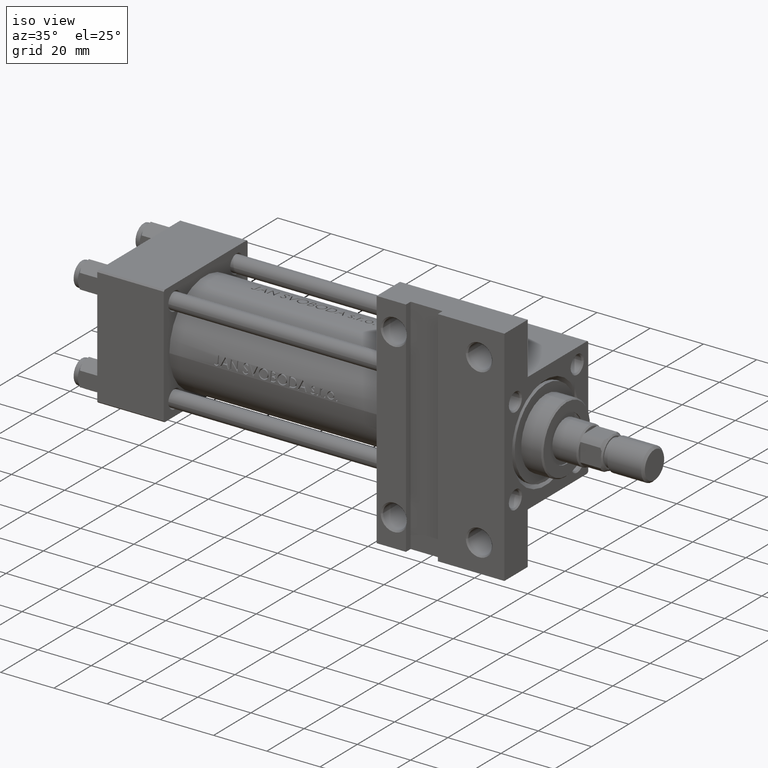
[diagram: clean part render]
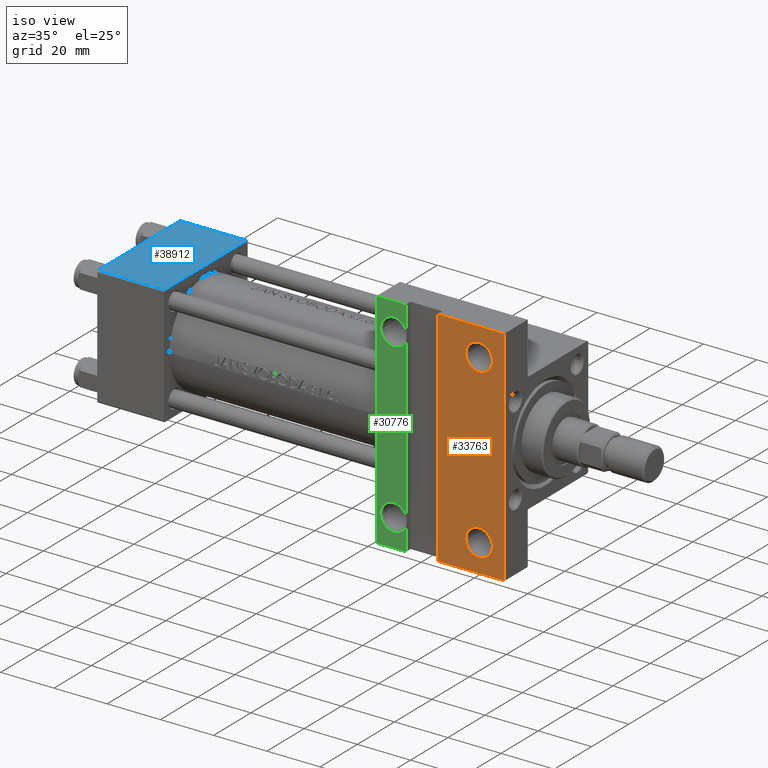
[diagram: same view with three faces highlighted in distinct colors, each labeled with its STEP entity id]
A machine part, iso view with three faces highlighted in distinct colors.
Their STEP definitions:

[orange] entity #33763 — the highlighted planar face has unit normal (0, -1, -0).
#947 = CARTESIAN_POINT ( 'NONE',  ( 152.9999999999999716, -42.00000000000000711, -22.50000000000000000 ) ) ;
#1293 = CARTESIAN_POINT ( 'NONE',  ( 143.5000000000000284, -31.50000000000000000, -22.50000000000000000 ) ) ;
#1351 = FACE_BOUND ( 'NONE', #21243, .T. ) ;
#1422 = LINE ( 'NONE', #5557, #18049 ) ;
#1968 = AXIS2_PLACEMENT_3D ( 'NONE', #19012, #34354, #40931 ) ;
#2406 = LINE ( 'NONE', #21403, #23086 ) ;
#2703 = LINE ( 'NONE', #43617, #7736 ) ;
#2944 = EDGE_CURVE ( 'NONE', #22647, #36130, #19082, .T. ) ;
#3064 = EDGE_CURVE ( 'NONE', #19444, #20577, #14530, .T. ) ;
#3673 = LINE ( 'NONE', #15860, #29642 ) ;
#4408 = CARTESIAN_POINT ( 'NONE',  ( 148.4994999999999550, -31.50000000000000000, -22.50000000000000000 ) ) ;
#4779 = DIRECTION ( 'NONE',  ( 0.000000000000000000, 7.709882115452476934E-17, -1.000000000000000000 ) ) ;
#5240 = DIRECTION ( 'NONE',  ( 0.000000000000000000, 1.000000000000000000, 7.709882115452476934E-17 ) ) ;
#5262 = VERTEX_POINT ( 'NONE', #34459 ) ;
#5557 = CARTESIAN_POINT ( 'NONE',  ( 153.0000000000000284, 22.50000000000000355, -22.49999999999999645 ) ) ;
#6626 = EDGE_CURVE ( 'NONE', #8284, #25236, #2406, .T. ) ;
#7216 = CARTESIAN_POINT ( 'NONE',  ( 143.5000000000000284, 31.50000000000000000, -22.49999999999999645 ) ) ;
#7563 = ORIENTED_EDGE ( 'NONE', *, *, #6626, .T. ) ;
#7632 = EDGE_CURVE ( 'NONE', #36130, #22647, #30906, .T. ) ;
#7736 = VECTOR ( 'NONE', #43369, 1000.000000000000000 ) ;
#8284 = VERTEX_POINT ( 'NONE', #41094 ) ;
#8896 = CARTESIAN_POINT ( 'NONE',  ( 152.9999999999999716, 41.99999999999999289, -22.50000000000000000 ) ) ;
#9863 = CARTESIAN_POINT ( 'NONE',  ( 138.5005000000000734, -31.50000000000000000, -22.50000000000000000 ) ) ;
#10496 = ORIENTED_EDGE ( 'NONE', *, *, #23198, .T. ) ;
#10858 = DIRECTION ( 'NONE',  ( -0.000000000000000000, -7.709882115452476934E-17, 1.000000000000000000 ) ) ;
#11052 = ORIENTED_EDGE ( 'NONE', *, *, #47591, .T. ) ;
#11774 = VERTEX_POINT ( 'NONE', #947 ) ;
#11790 = DIRECTION ( 'NONE',  ( -0.000000000000000000, -7.709882115452476934E-17, 1.000000000000000000 ) ) ;
#12322 = FACE_BOUND ( 'NONE', #19784, .T. ) ;
#14530 = CIRCLE ( 'NONE', #1968, 4.999499999999983402 ) ;
#15860 = CARTESIAN_POINT ( 'NONE',  ( 105.0000000000000000, -42.00000000000000711, -22.50000000000000000 ) ) ;
#18049 = VECTOR ( 'NONE', #23604, 1000.000000000000000 ) ;
#18203 = CARTESIAN_POINT ( 'NONE',  ( 148.4995000000000118, 31.50000000000000000, -22.49999999999999645 ) ) ;
#19012 = CARTESIAN_POINT ( 'NONE',  ( 143.5000000000000284, 31.50000000000000000, -22.49999999999999645 ) ) ;
#19082 = CIRCLE ( 'NONE', #24547, 4.999499999999948763 ) ;
#19444 = VERTEX_POINT ( 'NONE', #18203 ) ;
#19784 = EDGE_LOOP ( 'NONE', ( #10496, #23226 ) ) ;
#20577 = VERTEX_POINT ( 'NONE', #25429 ) ;
#21058 = EDGE_CURVE ( 'NONE', #11774, #5262, #3673, .T. ) ;
#21243 = EDGE_LOOP ( 'NONE', ( #45799, #46530 ) ) ;
#21403 = CARTESIAN_POINT ( 'NONE',  ( 105.0000000000000142, 41.99999999999999289, -22.50000000000000000 ) ) ;
#22078 = DIRECTION ( 'NONE',  ( 0.000000000000000000, 1.000000000000000000, 0.000000000000000000 ) ) ;
#22647 = VERTEX_POINT ( 'NONE', #9863 ) ;
#23086 = VECTOR ( 'NONE', #47219, 1000.000000000000000 ) ;
#23198 = EDGE_CURVE ( 'NONE', #20577, #19444, #46050, .T. ) ;
#23226 = ORIENTED_EDGE ( 'NONE', *, *, #3064, .T. ) ;
#23604 = DIRECTION ( 'NONE',  ( 0.000000000000000000, -1.000000000000000000, -7.709882115452476934E-17 ) ) ;
#24547 = AXIS2_PLACEMENT_3D ( 'NONE', #31696, #42653, #46561 ) ;
#25236 = VERTEX_POINT ( 'NONE', #8896 ) ;
#25429 = CARTESIAN_POINT ( 'NONE',  ( 138.5005000000000166, 31.50000000000000000, -22.49999999999999645 ) ) ;
#27885 = FACE_OUTER_BOUND ( 'NONE', #33954, .T. ) ;
#28443 = ORIENTED_EDGE ( 'NONE', *, *, #41353, .F. ) ;
#29642 = VECTOR ( 'NONE', #33648, 1000.000000000000000 ) ;
#30405 = ORIENTED_EDGE ( 'NONE', *, *, #21058, .T. ) ;
#30552 = DIRECTION ( 'NONE',  ( 0.000000000000000000, 1.000000000000000000, 0.000000000000000000 ) ) ;
#30906 = CIRCLE ( 'NONE', #38681, 4.999499999999948763 ) ;
#31696 = CARTESIAN_POINT ( 'NONE',  ( 143.5000000000000284, -31.50000000000000000, -22.50000000000000000 ) ) ;
#32050 = AXIS2_PLACEMENT_3D ( 'NONE', #7216, #10858, #22078 ) ;
#33648 = DIRECTION ( 'NONE',  ( -1.000000000000000000, -0.000000000000000000, -0.000000000000000000 ) ) ;
#33763 = ADVANCED_FACE ( 'NONE', ( #27885, #12322, #1351 ), #42032, .T. ) ;
#33954 = EDGE_LOOP ( 'NONE', ( #28443, #7563, #11052, #30405 ) ) ;
#34354 = DIRECTION ( 'NONE',  ( -0.000000000000000000, -7.709882115452476934E-17, 1.000000000000000000 ) ) ;
#34459 = CARTESIAN_POINT ( 'NONE',  ( 127.9999999999999432, -41.99999999999999289, -22.50000000000000000 ) ) ;
#35574 = AXIS2_PLACEMENT_3D ( 'NONE', #42739, #4779, #5240 ) ;
#36130 = VERTEX_POINT ( 'NONE', #4408 ) ;
#38681 = AXIS2_PLACEMENT_3D ( 'NONE', #1293, #11790, #30552 ) ;
#40931 = DIRECTION ( 'NONE',  ( 0.000000000000000000, 1.000000000000000000, 0.000000000000000000 ) ) ;
#41094 = CARTESIAN_POINT ( 'NONE',  ( 127.9999999999999432, 41.99999999999999289, -22.50000000000000000 ) ) ;
#41353 = EDGE_CURVE ( 'NONE', #8284, #5262, #2703, .T. ) ;
#42032 = PLANE ( 'NONE',  #35574 ) ;
#42653 = DIRECTION ( 'NONE',  ( -0.000000000000000000, -7.709882115452476934E-17, 1.000000000000000000 ) ) ;
#42739 = CARTESIAN_POINT ( 'NONE',  ( 153.0000000000000284, 22.50000000000000355, -22.49999999999999645 ) ) ;
#43369 = DIRECTION ( 'NONE',  ( -0.000000000000000000, -1.000000000000000000, -0.000000000000000000 ) ) ;
#43617 = CARTESIAN_POINT ( 'NONE',  ( 127.9999999999999432, -41.99999999999999289, -22.50000000000000000 ) ) ;
#45799 = ORIENTED_EDGE ( 'NONE', *, *, #2944, .T. ) ;
#46050 = CIRCLE ( 'NONE', #32050, 4.999499999999983402 ) ;
#46530 = ORIENTED_EDGE ( 'NONE', *, *, #7632, .T. ) ;
#46561 = DIRECTION ( 'NONE',  ( 0.000000000000000000, 1.000000000000000000, 0.000000000000000000 ) ) ;
#47219 = DIRECTION ( 'NONE',  ( 1.000000000000000000, 0.000000000000000000, 0.000000000000000000 ) ) ;
#47591 = EDGE_CURVE ( 'NONE', #25236, #11774, #1422, .T. ) ;

[blue] entity #38912 — the highlighted planar face has unit normal (0, 0, -1).
#877 = EDGE_CURVE ( 'NONE', #26016, #34412, #40825, .T. ) ;
#2192 = CARTESIAN_POINT ( 'NONE',  ( 25.00000000000000000, -22.50000000000000000, 22.00000000000000000 ) ) ;
#3393 = DIRECTION ( 'NONE',  ( 1.000000000000000000, 0.000000000000000000, 0.000000000000000000 ) ) ;
#3830 = AXIS2_PLACEMENT_3D ( 'NONE', #15761, #45698, #23061 ) ;
#5961 = EDGE_CURVE ( 'NONE', #46454, #27638, #7750, .T. ) ;
#7404 = EDGE_LOOP ( 'NONE', ( #10687, #44129, #17583, #32491 ) ) ;
#7750 = LINE ( 'NONE', #30149, #21513 ) ;
#10026 = EDGE_CURVE ( 'NONE', #27638, #34412, #11423, .T. ) ;
#10687 = ORIENTED_EDGE ( 'NONE', *, *, #5961, .T. ) ;
#11423 = LINE ( 'NONE', #29695, #44174 ) ;
#11473 = EDGE_CURVE ( 'NONE', #26016, #46454, #47570, .T. ) ;
#13318 = CARTESIAN_POINT ( 'NONE',  ( 25.00000000000000000, -22.50000000000000000, -21.99999999999997158 ) ) ;
#15761 = CARTESIAN_POINT ( 'NONE',  ( 25.00000000000000000, -22.50000000000000000, 22.50000000000000000 ) ) ;
#17583 = ORIENTED_EDGE ( 'NONE', *, *, #877, .F. ) ;
#21513 = VECTOR ( 'NONE', #37454, 1000.000000000000000 ) ;
#23061 = DIRECTION ( 'NONE',  ( 0.000000000000000000, -0.000000000000000000, 1.000000000000000000 ) ) ;
#23537 = PLANE ( 'NONE',  #3830 ) ;
#26016 = VERTEX_POINT ( 'NONE', #2192 ) ;
#27638 = VERTEX_POINT ( 'NONE', #44033 ) ;
#29695 = CARTESIAN_POINT ( 'NONE',  ( 25.00000000000000000, -22.50000000000000000, -21.99999999999998579 ) ) ;
#30149 = CARTESIAN_POINT ( 'NONE',  ( 0.000000000000000000, -22.50000000000000000, 22.50000000000000000 ) ) ;
#32491 = ORIENTED_EDGE ( 'NONE', *, *, #11473, .T. ) ;
#34412 = VERTEX_POINT ( 'NONE', #13318 ) ;
#36457 = VECTOR ( 'NONE', #36928, 1000.000000000000000 ) ;
#36928 = DIRECTION ( 'NONE',  ( 0.000000000000000000, 0.000000000000000000, -1.000000000000000000 ) ) ;
#37227 = VECTOR ( 'NONE', #40743, 1000.000000000000000 ) ;
#37454 = DIRECTION ( 'NONE',  ( 0.000000000000000000, 0.000000000000000000, -1.000000000000000000 ) ) ;
#38912 = ADVANCED_FACE ( 'NONE', ( #45231 ), #23537, .F. ) ;
#40595 = CARTESIAN_POINT ( 'NONE',  ( 25.00000000000000000, -22.50000000000000000, 22.50000000000000000 ) ) ;
#40743 = DIRECTION ( 'NONE',  ( -1.000000000000000000, 0.000000000000000000, 0.000000000000000000 ) ) ;
#40825 = LINE ( 'NONE', #40595, #36457 ) ;
#42150 = CARTESIAN_POINT ( 'NONE',  ( 0.000000000000000000, -22.50000000000000000, 22.00000000000000000 ) ) ;
#43906 = CARTESIAN_POINT ( 'NONE',  ( 25.00000000000000000, -22.50000000000000000, 22.00000000000000000 ) ) ;
#44033 = CARTESIAN_POINT ( 'NONE',  ( 0.000000000000000000, -22.50000000000000000, -21.99999999999997158 ) ) ;
#44129 = ORIENTED_EDGE ( 'NONE', *, *, #10026, .T. ) ;
#44174 = VECTOR ( 'NONE', #3393, 1000.000000000000000 ) ;
#45231 = FACE_OUTER_BOUND ( 'NONE', #7404, .T. ) ;
#45698 = DIRECTION ( 'NONE',  ( -0.000000000000000000, 1.000000000000000000, 0.000000000000000000 ) ) ;
#46454 = VERTEX_POINT ( 'NONE', #42150 ) ;
#47570 = LINE ( 'NONE', #43906, #37227 ) ;

[green] entity #30776 — the highlighted planar face has unit normal (0, -1, -0).
#482 = VECTOR ( 'NONE', #16777, 1000.000000000000000 ) ;
#968 = DIRECTION ( 'NONE',  ( 1.000000000000000000, 0.000000000000000000, 0.000000000000000000 ) ) ;
#2143 = DIRECTION ( 'NONE',  ( -0.000000000000000000, -7.709882115452476934E-17, 1.000000000000000000 ) ) ;
#2155 = CIRCLE ( 'NONE', #29383, 4.999499999999990507 ) ;
#3106 = EDGE_LOOP ( 'NONE', ( #7633, #33026, #36881, #22043, #41649, #28646, #42407, #5035, #46449, #28203 ) ) ;
#3687 = VECTOR ( 'NONE', #40359, 1000.000000000000000 ) ;
#4669 = VECTOR ( 'NONE', #11980, 1000.000000000000000 ) ;
#5035 = ORIENTED_EDGE ( 'NONE', *, *, #5133, .F. ) ;
#5133 = EDGE_CURVE ( 'NONE', #21457, #19695, #20916, .T. ) ;
#6508 = CARTESIAN_POINT ( 'NONE',  ( 115.9999999999999574, -41.99999999999999289, -22.50000000000000000 ) ) ;
#7467 = CARTESIAN_POINT ( 'NONE',  ( 115.9999999999999574, -29.32169785153667263, -22.50000000000000000 ) ) ;
#7592 = LINE ( 'NONE', #19268, #36403 ) ;
#7633 = ORIENTED_EDGE ( 'NONE', *, *, #36157, .F. ) ;
#7943 = VERTEX_POINT ( 'NONE', #25097 ) ;
#8550 = DIRECTION ( 'NONE',  ( -0.000000000000000000, -7.709882115452476934E-17, 1.000000000000000000 ) ) ;
#8586 = AXIS2_PLACEMENT_3D ( 'NONE', #9040, #23912, #38757 ) ;
#9040 = CARTESIAN_POINT ( 'NONE',  ( 111.5000000000000142, -31.50000000000000000, -22.50000000000000000 ) ) ;
#10046 = CARTESIAN_POINT ( 'NONE',  ( 105.0000000000000000, -42.00000000000000711, -22.50000000000000000 ) ) ;
#10385 = DIRECTION ( 'NONE',  ( 0.000000000000000000, 1.000000000000000000, 0.000000000000000000 ) ) ;
#10801 = VERTEX_POINT ( 'NONE', #37979 ) ;
#10843 = CARTESIAN_POINT ( 'NONE',  ( 115.9999999999999574, -41.99999999999999289, -22.50000000000000000 ) ) ;
#11554 = AXIS2_PLACEMENT_3D ( 'NONE', #41911, #8550, #20221 ) ;
#11980 = DIRECTION ( 'NONE',  ( 0.000000000000000000, -1.000000000000000000, -7.709882115452476934E-17 ) ) ;
#12395 = CARTESIAN_POINT ( 'NONE',  ( 105.0000000000000142, 41.99999999999999289, -22.50000000000000000 ) ) ;
#12694 = CARTESIAN_POINT ( 'NONE',  ( 153.0000000000000284, 22.50000000000000355, -22.49999999999999645 ) ) ;
#13810 = LINE ( 'NONE', #6508, #3687 ) ;
#13926 = VERTEX_POINT ( 'NONE', #15592 ) ;
#14023 = EDGE_CURVE ( 'NONE', #25827, #10801, #17892, .T. ) ;
#14852 = CARTESIAN_POINT ( 'NONE',  ( 115.9999999999999574, 41.99999999999999289, -22.50000000000000000 ) ) ;
#15579 = CARTESIAN_POINT ( 'NONE',  ( 105.0000000000000000, -42.00000000000000711, -22.50000000000000000 ) ) ;
#15592 = CARTESIAN_POINT ( 'NONE',  ( 106.5005000000000308, 31.50000000000000000, -22.49999999999999645 ) ) ;
#16115 = FACE_OUTER_BOUND ( 'NONE', #3106, .T. ) ;
#16777 = DIRECTION ( 'NONE',  ( 0.000000000000000000, 1.000000000000000000, 0.000000000000000000 ) ) ;
#17892 = CIRCLE ( 'NONE', #18662, 4.999499999999948763 ) ;
#18662 = AXIS2_PLACEMENT_3D ( 'NONE', #20173, #2143, #35031 ) ;
#19177 = EDGE_CURVE ( 'NONE', #39510, #42595, #26528, .T. ) ;
#19268 = CARTESIAN_POINT ( 'NONE',  ( 115.9999999999999574, -41.99999999999999289, -22.50000000000000000 ) ) ;
#19695 = VERTEX_POINT ( 'NONE', #24977 ) ;
#20173 = CARTESIAN_POINT ( 'NONE',  ( 111.5000000000000142, -31.50000000000000000, -22.50000000000000000 ) ) ;
#20221 = DIRECTION ( 'NONE',  ( 0.000000000000000000, 1.000000000000000000, 0.000000000000000000 ) ) ;
#20916 = LINE ( 'NONE', #10843, #482 ) ;
#21457 = VERTEX_POINT ( 'NONE', #7467 ) ;
#22043 = ORIENTED_EDGE ( 'NONE', *, *, #31054, .T. ) ;
#22453 = DIRECTION ( 'NONE',  ( 0.000000000000000000, 1.000000000000000000, 0.000000000000000000 ) ) ;
#22798 = VERTEX_POINT ( 'NONE', #34664 ) ;
#22897 = LINE ( 'NONE', #12395, #28491 ) ;
#23912 = DIRECTION ( 'NONE',  ( -0.000000000000000000, -7.709882115452476934E-17, 1.000000000000000000 ) ) ;
#23959 = CARTESIAN_POINT ( 'NONE',  ( 115.9999999999999574, -41.99999999999999289, -22.50000000000000000 ) ) ;
#24977 = CARTESIAN_POINT ( 'NONE',  ( 115.9999999999999574, 29.32169785153656960, -22.50000000000000000 ) ) ;
#25097 = CARTESIAN_POINT ( 'NONE',  ( 115.9999999999999574, 33.67830214846343040, -22.50000000000000000 ) ) ;
#25827 = VERTEX_POINT ( 'NONE', #33417 ) ;
#26354 = LINE ( 'NONE', #30005, #4669 ) ;
#26528 = LINE ( 'NONE', #15579, #46713 ) ;
#28203 = ORIENTED_EDGE ( 'NONE', *, *, #14023, .T. ) ;
#28491 = VECTOR ( 'NONE', #968, 1000.000000000000000 ) ;
#28646 = ORIENTED_EDGE ( 'NONE', *, *, #36202, .T. ) ;
#29383 = AXIS2_PLACEMENT_3D ( 'NONE', #35959, #41062, #10385 ) ;
#30005 = CARTESIAN_POINT ( 'NONE',  ( 105.0000000000000142, 22.50000000000000355, -22.49999999999999645 ) ) ;
#30430 = DIRECTION ( 'NONE',  ( -1.000000000000000000, -0.000000000000000000, -0.000000000000000000 ) ) ;
#30776 = ADVANCED_FACE ( 'NONE', ( #16115 ), #41929, .T. ) ;
#31054 = EDGE_CURVE ( 'NONE', #22798, #46587, #22897, .T. ) ;
#31748 = CIRCLE ( 'NONE', #11554, 4.999499999999990507 ) ;
#33026 = ORIENTED_EDGE ( 'NONE', *, *, #19177, .T. ) ;
#33417 = CARTESIAN_POINT ( 'NONE',  ( 106.5005000000000734, -31.50000000000000000, -22.50000000000000000 ) ) ;
#33579 = EDGE_CURVE ( 'NONE', #7943, #46587, #13810, .T. ) ;
#34395 = DIRECTION ( 'NONE',  ( 0.000000000000000000, 7.709882115452476934E-17, -1.000000000000000000 ) ) ;
#34664 = CARTESIAN_POINT ( 'NONE',  ( 105.0000000000000142, 41.99999999999999289, -22.50000000000000000 ) ) ;
#34788 = EDGE_CURVE ( 'NONE', #13926, #19695, #2155, .T. ) ;
#35031 = DIRECTION ( 'NONE',  ( 0.000000000000000000, 1.000000000000000000, 0.000000000000000000 ) ) ;
#35959 = CARTESIAN_POINT ( 'NONE',  ( 111.5000000000000142, 31.50000000000000000, -22.49999999999999645 ) ) ;
#36157 = EDGE_CURVE ( 'NONE', #39510, #10801, #7592, .T. ) ;
#36202 = EDGE_CURVE ( 'NONE', #7943, #13926, #31748, .T. ) ;
#36403 = VECTOR ( 'NONE', #22453, 1000.000000000000000 ) ;
#36881 = ORIENTED_EDGE ( 'NONE', *, *, #43695, .F. ) ;
#37054 = AXIS2_PLACEMENT_3D ( 'NONE', #12694, #34395, #45360 ) ;
#37979 = CARTESIAN_POINT ( 'NONE',  ( 115.9999999999999574, -33.67830214846332382, -22.50000000000000000 ) ) ;
#38757 = DIRECTION ( 'NONE',  ( 0.000000000000000000, 1.000000000000000000, 0.000000000000000000 ) ) ;
#39510 = VERTEX_POINT ( 'NONE', #23959 ) ;
#40359 = DIRECTION ( 'NONE',  ( 0.000000000000000000, 1.000000000000000000, 0.000000000000000000 ) ) ;
#41062 = DIRECTION ( 'NONE',  ( -0.000000000000000000, -7.709882115452476934E-17, 1.000000000000000000 ) ) ;
#41276 = CIRCLE ( 'NONE', #8586, 4.999499999999948763 ) ;
#41649 = ORIENTED_EDGE ( 'NONE', *, *, #33579, .F. ) ;
#41911 = CARTESIAN_POINT ( 'NONE',  ( 111.5000000000000142, 31.50000000000000000, -22.49999999999999645 ) ) ;
#41929 = PLANE ( 'NONE',  #37054 ) ;
#42407 = ORIENTED_EDGE ( 'NONE', *, *, #34788, .T. ) ;
#42595 = VERTEX_POINT ( 'NONE', #10046 ) ;
#43695 = EDGE_CURVE ( 'NONE', #22798, #42595, #26354, .T. ) ;
#44895 = EDGE_CURVE ( 'NONE', #21457, #25827, #41276, .T. ) ;
#45360 = DIRECTION ( 'NONE',  ( 0.000000000000000000, 1.000000000000000000, 7.709882115452476934E-17 ) ) ;
#46449 = ORIENTED_EDGE ( 'NONE', *, *, #44895, .T. ) ;
#46587 = VERTEX_POINT ( 'NONE', #14852 ) ;
#46713 = VECTOR ( 'NONE', #30430, 1000.000000000000000 ) ;